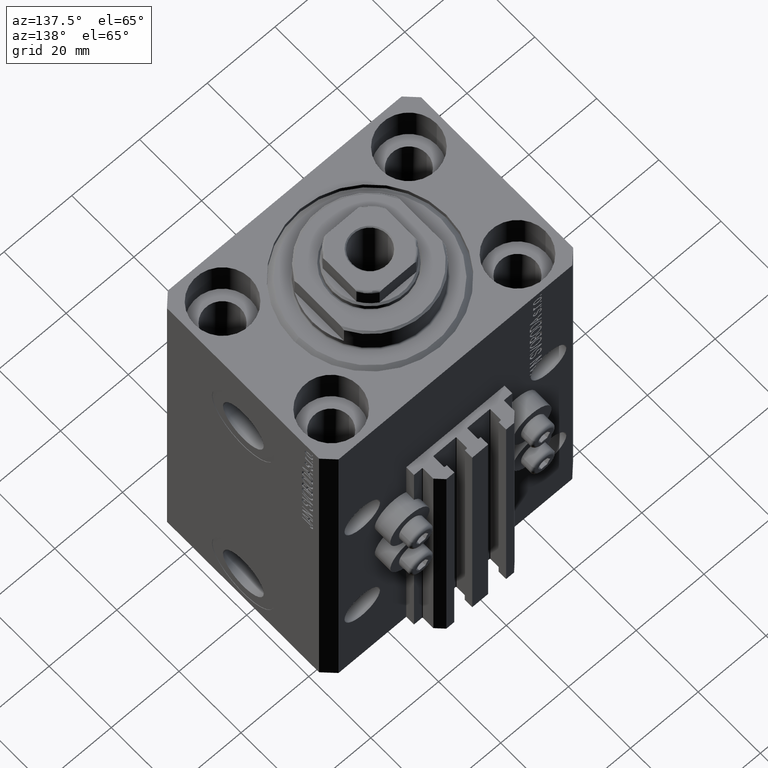
[diagram: clean part render]
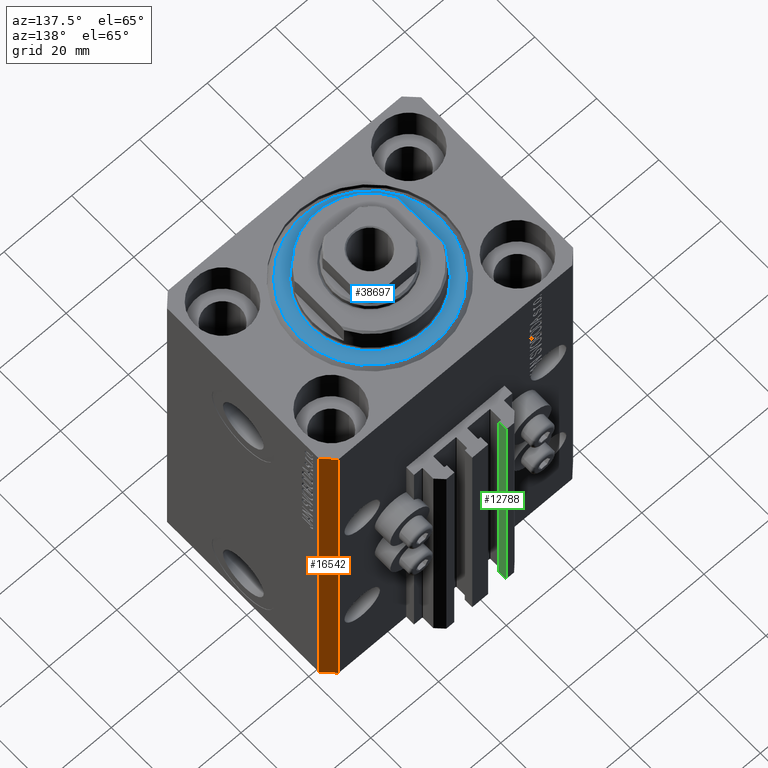
[diagram: same view with three faces highlighted in distinct colors, each labeled with its STEP entity id]
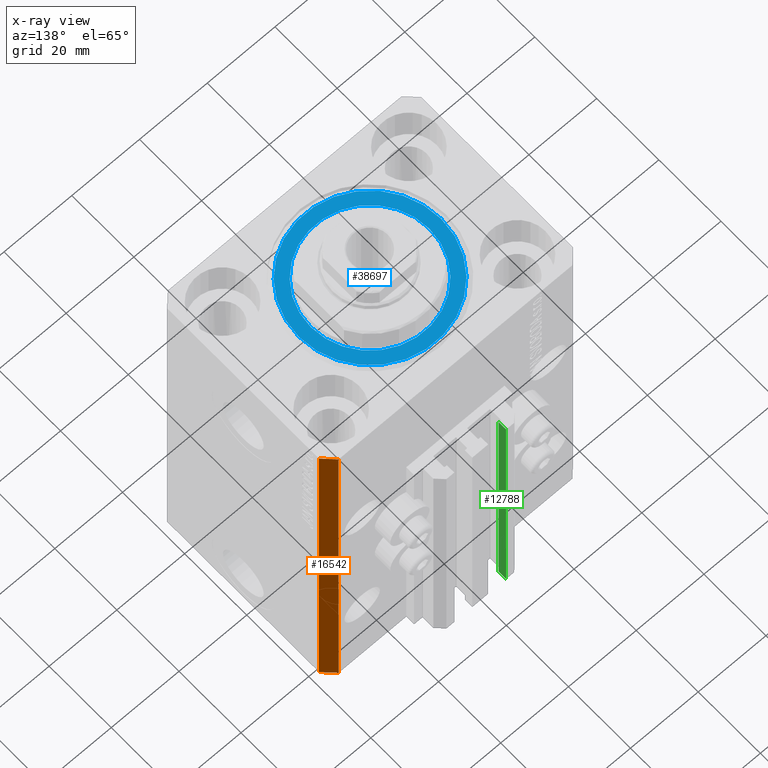
[diagram: x-ray of the same camera — body ghosted, the three highlighted faces saturated]
A machine part, auxiliary view with three faces highlighted in distinct colors.
The next image is the same camera in x-ray (body ghosted, the three faces saturated) — at least one of them is partly hidden behind the body in this view.
Their STEP definitions:

[orange] entity #16542 — the highlighted planar face has unit normal (0.7071, 0.7071, 0).
#949 = VECTOR ( 'NONE', #25124, 1000.000000000000000 ) ;
#1012 = CARTESIAN_POINT ( 'NONE',  ( 37.50000000000051870, 24.49999999999995381, -110.0000000000000000 ) ) ;
#2532 = EDGE_CURVE ( 'NONE', #36948, #38797, #18593, .T. ) ;
#5112 = VECTOR ( 'NONE', #8296, 1000.000000000000114 ) ;
#6184 = VERTEX_POINT ( 'NONE', #12432 ) ;
#7814 = DIRECTION ( 'NONE',  ( 0.7071067811865594521, 0.7071067811865356934, -0.000000000000000000 ) ) ;
#8296 = DIRECTION ( 'NONE',  ( -0.7071067811865356934, 0.7071067811865594521, 0.000000000000000000 ) ) ;
#9089 = CARTESIAN_POINT ( 'NONE',  ( 37.50000000000051870, 24.49999999999995381, -110.0000000000000000 ) ) ;
#9201 = VECTOR ( 'NONE', #38882, 1000.000000000000000 ) ;
#10051 = CARTESIAN_POINT ( 'NONE',  ( 34.50000000000056843, 27.50000000000000000, 0.000000000000000000 ) ) ;
#10305 = ORIENTED_EDGE ( 'NONE', *, *, #23308, .F. ) ;
#12432 = CARTESIAN_POINT ( 'NONE',  ( 37.50000000000051870, 24.49999999999995381, 0.000000000000000000 ) ) ;
#12653 = PLANE ( 'NONE',  #15912 ) ;
#15484 = CARTESIAN_POINT ( 'NONE',  ( 37.50000000000051870, 24.49999999999995381, 0.000000000000000000 ) ) ;
#15797 = CARTESIAN_POINT ( 'NONE',  ( 37.50000000000051870, 24.49999999999995381, -110.0000000000000000 ) ) ;
#15912 = AXIS2_PLACEMENT_3D ( 'NONE', #15797, #7814, #26932 ) ;
#16542 = ADVANCED_FACE ( 'NONE', ( #45818 ), #12653, .T. ) ;
#17074 = LINE ( 'NONE', #9089, #9201 ) ;
#18593 = LINE ( 'NONE', #44253, #949 ) ;
#18647 = LINE ( 'NONE', #15484, #36316 ) ;
#23308 = EDGE_CURVE ( 'NONE', #29072, #6184, #17074, .T. ) ;
#24833 = EDGE_CURVE ( 'NONE', #6184, #38797, #18647, .T. ) ;
#24944 = EDGE_LOOP ( 'NONE', ( #27231, #10305, #29907, #38147 ) ) ;
#25124 = DIRECTION ( 'NONE',  ( 0.000000000000000000, 0.000000000000000000, 1.000000000000000000 ) ) ;
#26932 = DIRECTION ( 'NONE',  ( -0.7071067811865356934, 0.7071067811865594521, 0.000000000000000000 ) ) ;
#27231 = ORIENTED_EDGE ( 'NONE', *, *, #24833, .F. ) ;
#29072 = VERTEX_POINT ( 'NONE', #1012 ) ;
#29907 = ORIENTED_EDGE ( 'NONE', *, *, #47136, .T. ) ;
#31953 = CARTESIAN_POINT ( 'NONE',  ( 37.50000000000051870, 24.49999999999995381, -110.0000000000000000 ) ) ;
#34449 = LINE ( 'NONE', #31953, #5112 ) ;
#36316 = VECTOR ( 'NONE', #47934, 1000.000000000000114 ) ;
#36948 = VERTEX_POINT ( 'NONE', #40044 ) ;
#38147 = ORIENTED_EDGE ( 'NONE', *, *, #2532, .T. ) ;
#38797 = VERTEX_POINT ( 'NONE', #10051 ) ;
#38882 = DIRECTION ( 'NONE',  ( 0.000000000000000000, 0.000000000000000000, 1.000000000000000000 ) ) ;
#40044 = CARTESIAN_POINT ( 'NONE',  ( 34.50000000000056843, 27.50000000000000000, -110.0000000000000000 ) ) ;
#44253 = CARTESIAN_POINT ( 'NONE',  ( 34.50000000000056843, 27.50000000000000000, -110.0000000000000000 ) ) ;
#45818 = FACE_OUTER_BOUND ( 'NONE', #24944, .T. ) ;
#47136 = EDGE_CURVE ( 'NONE', #29072, #36948, #34449, .T. ) ;
#47934 = DIRECTION ( 'NONE',  ( -0.7071067811865356934, 0.7071067811865594521, 0.000000000000000000 ) ) ;

[blue] entity #38697 — the highlighted planar face has unit normal (0, 0, -1).
#3371 = CARTESIAN_POINT ( 'NONE',  ( 20.99999999999998934, 0.000000000000000000, 0.000000000000000000 ) ) ;
#5208 = CARTESIAN_POINT ( 'NONE',  ( 0.000000000000000000, 0.000000000000000000, 0.000000000000000000 ) ) ;
#6249 = DIRECTION ( 'NONE',  ( -0.000000000000000000, -0.000000000000000000, -1.000000000000000000 ) ) ;
#6256 = AXIS2_PLACEMENT_3D ( 'NONE', #39818, #25505, #17779 ) ;
#7400 = VERTEX_POINT ( 'NONE', #32155 ) ;
#9476 = AXIS2_PLACEMENT_3D ( 'NONE', #12260, #23382, #12494 ) ;
#11774 = DIRECTION ( 'NONE',  ( 1.000000000000000000, 0.000000000000000000, 0.000000000000000000 ) ) ;
#12260 = CARTESIAN_POINT ( 'NONE',  ( 0.000000000000000000, 0.000000000000000000, 0.000000000000000000 ) ) ;
#12278 = EDGE_CURVE ( 'NONE', #37249, #26399, #21307, .T. ) ;
#12494 = DIRECTION ( 'NONE',  ( 1.000000000000000000, 0.000000000000000000, -0.000000000000000000 ) ) ;
#14776 = EDGE_LOOP ( 'NONE', ( #25021, #37879 ) ) ;
#17779 = DIRECTION ( 'NONE',  ( 1.000000000000000000, 0.000000000000000000, 0.000000000000000000 ) ) ;
#18786 = CIRCLE ( 'NONE', #45835, 17.50000000000000000 ) ;
#19044 = DIRECTION ( 'NONE',  ( 0.000000000000000000, 0.000000000000000000, 1.000000000000000000 ) ) ;
#19457 = CARTESIAN_POINT ( 'NONE',  ( 0.000000000000000000, 0.000000000000000000, 0.000000000000000000 ) ) ;
#20703 = EDGE_CURVE ( 'NONE', #7400, #37076, #47779, .T. ) ;
#21307 = CIRCLE ( 'NONE', #25933, 20.99999999999998934 ) ;
#22030 = ORIENTED_EDGE ( 'NONE', *, *, #12278, .T. ) ;
#22474 = CIRCLE ( 'NONE', #6256, 20.99999999999998934 ) ;
#23382 = DIRECTION ( 'NONE',  ( 0.000000000000000000, 0.000000000000000000, 1.000000000000000000 ) ) ;
#23558 = DIRECTION ( 'NONE',  ( 0.000000000000000000, 0.000000000000000000, 1.000000000000000000 ) ) ;
#24527 = AXIS2_PLACEMENT_3D ( 'NONE', #19457, #23558, #31062 ) ;
#25021 = ORIENTED_EDGE ( 'NONE', *, *, #35959, .T. ) ;
#25505 = DIRECTION ( 'NONE',  ( -0.000000000000000000, -0.000000000000000000, -1.000000000000000000 ) ) ;
#25636 = CARTESIAN_POINT ( 'NONE',  ( -20.99999999999998934, 2.663606788145492628E-15, 0.000000000000000000 ) ) ;
#25933 = AXIS2_PLACEMENT_3D ( 'NONE', #29247, #6249, #32182 ) ;
#26399 = VERTEX_POINT ( 'NONE', #25636 ) ;
#28772 = EDGE_LOOP ( 'NONE', ( #22030, #32780 ) ) ;
#29247 = CARTESIAN_POINT ( 'NONE',  ( 0.000000000000000000, 0.000000000000000000, 0.000000000000000000 ) ) ;
#30720 = EDGE_CURVE ( 'NONE', #26399, #37249, #22474, .T. ) ;
#31062 = DIRECTION ( 'NONE',  ( 1.000000000000000000, 0.000000000000000000, 0.000000000000000000 ) ) ;
#31133 = FACE_BOUND ( 'NONE', #14776, .T. ) ;
#32155 = CARTESIAN_POINT ( 'NONE',  ( -17.50000000000000000, 2.143131898507868643E-15, -2.168404344971008868E-16 ) ) ;
#32182 = DIRECTION ( 'NONE',  ( 1.000000000000000000, 0.000000000000000000, 0.000000000000000000 ) ) ;
#32780 = ORIENTED_EDGE ( 'NONE', *, *, #30720, .T. ) ;
#34775 = PLANE ( 'NONE',  #9476 ) ;
#35959 = EDGE_CURVE ( 'NONE', #37076, #7400, #18786, .T. ) ;
#37076 = VERTEX_POINT ( 'NONE', #37334 ) ;
#37249 = VERTEX_POINT ( 'NONE', #3371 ) ;
#37334 = CARTESIAN_POINT ( 'NONE',  ( 17.50000000000000000, 0.000000000000000000, -2.168404344971008868E-16 ) ) ;
#37879 = ORIENTED_EDGE ( 'NONE', *, *, #20703, .T. ) ;
#38697 = ADVANCED_FACE ( 'NONE', ( #31133, #46372 ), #34775, .F. ) ;
#39818 = CARTESIAN_POINT ( 'NONE',  ( 0.000000000000000000, 0.000000000000000000, 0.000000000000000000 ) ) ;
#45835 = AXIS2_PLACEMENT_3D ( 'NONE', #5208, #19044, #11774 ) ;
#46372 = FACE_OUTER_BOUND ( 'NONE', #28772, .T. ) ;
#47779 = CIRCLE ( 'NONE', #24527, 17.50000000000000000 ) ;

[green] entity #12788 — the highlighted planar face has unit normal (1, 0, 0).
#144 = EDGE_CURVE ( 'NONE', #40762, #31044, #29013, .T. ) ;
#2681 = FACE_OUTER_BOUND ( 'NONE', #19019, .T. ) ;
#3750 = VERTEX_POINT ( 'NONE', #11274 ) ;
#4688 = EDGE_CURVE ( 'NONE', #31044, #11066, #16172, .T. ) ;
#8908 = DIRECTION ( 'NONE',  ( 0.000000000000000000, 0.000000000000000000, 1.000000000000000000 ) ) ;
#10359 = DIRECTION ( 'NONE',  ( 0.000000000000000000, 0.000000000000000000, 1.000000000000000000 ) ) ;
#11066 = VERTEX_POINT ( 'NONE', #38084 ) ;
#11274 = CARTESIAN_POINT ( 'NONE',  ( -7.650000000000000355, 33.09999999999999432, -33.00000000000000000 ) ) ;
#12061 = AXIS2_PLACEMENT_3D ( 'NONE', #32250, #24704, #39500 ) ;
#12788 = ADVANCED_FACE ( 'NONE', ( #2681 ), #44327, .T. ) ;
#13254 = VECTOR ( 'NONE', #20234, 1000.000000000000000 ) ;
#13477 = ORIENTED_EDGE ( 'NONE', *, *, #28676, .F. ) ;
#16172 = LINE ( 'NONE', #35064, #38813 ) ;
#19019 = EDGE_LOOP ( 'NONE', ( #47482, #13477, #37678, #47889 ) ) ;
#20234 = DIRECTION ( 'NONE',  ( 0.000000000000000000, 1.000000000000000000, 0.000000000000000000 ) ) ;
#21962 = CARTESIAN_POINT ( 'NONE',  ( -7.650000000000000355, 33.09999999999999432, -110.0000000000000000 ) ) ;
#23623 = LINE ( 'NONE', #34296, #13254 ) ;
#24704 = DIRECTION ( 'NONE',  ( 1.000000000000000000, 0.000000000000000000, 0.000000000000000000 ) ) ;
#28676 = EDGE_CURVE ( 'NONE', #40762, #3750, #29235, .T. ) ;
#29013 = LINE ( 'NONE', #46936, #46911 ) ;
#29235 = LINE ( 'NONE', #21962, #44843 ) ;
#31044 = VERTEX_POINT ( 'NONE', #34699 ) ;
#31873 = EDGE_CURVE ( 'NONE', #3750, #11066, #23623, .T. ) ;
#32250 = CARTESIAN_POINT ( 'NONE',  ( -7.650000000000000355, 33.09999999999999432, -110.0000000000000000 ) ) ;
#32899 = DIRECTION ( 'NONE',  ( 0.000000000000000000, 1.000000000000000000, 0.000000000000000000 ) ) ;
#34296 = CARTESIAN_POINT ( 'NONE',  ( -7.650000000000000355, 33.09999999999999432, -33.00000000000000000 ) ) ;
#34699 = CARTESIAN_POINT ( 'NONE',  ( -7.650000000000000355, 35.50000000000000000, -110.0000000000000000 ) ) ;
#35064 = CARTESIAN_POINT ( 'NONE',  ( -7.650000000000000355, 35.50000000000000000, -110.0000000000000000 ) ) ;
#35312 = CARTESIAN_POINT ( 'NONE',  ( -7.650000000000000355, 33.09999999999999432, -110.0000000000000000 ) ) ;
#37678 = ORIENTED_EDGE ( 'NONE', *, *, #144, .T. ) ;
#38084 = CARTESIAN_POINT ( 'NONE',  ( -7.650000000000000355, 35.50000000000000000, -33.00000000000000000 ) ) ;
#38813 = VECTOR ( 'NONE', #8908, 1000.000000000000000 ) ;
#39500 = DIRECTION ( 'NONE',  ( 0.000000000000000000, 0.000000000000000000, -1.000000000000000000 ) ) ;
#40762 = VERTEX_POINT ( 'NONE', #35312 ) ;
#44327 = PLANE ( 'NONE',  #12061 ) ;
#44843 = VECTOR ( 'NONE', #10359, 1000.000000000000000 ) ;
#46911 = VECTOR ( 'NONE', #32899, 1000.000000000000000 ) ;
#46936 = CARTESIAN_POINT ( 'NONE',  ( -7.650000000000000355, 33.09999999999999432, -110.0000000000000000 ) ) ;
#47482 = ORIENTED_EDGE ( 'NONE', *, *, #31873, .F. ) ;
#47889 = ORIENTED_EDGE ( 'NONE', *, *, #4688, .T. ) ;